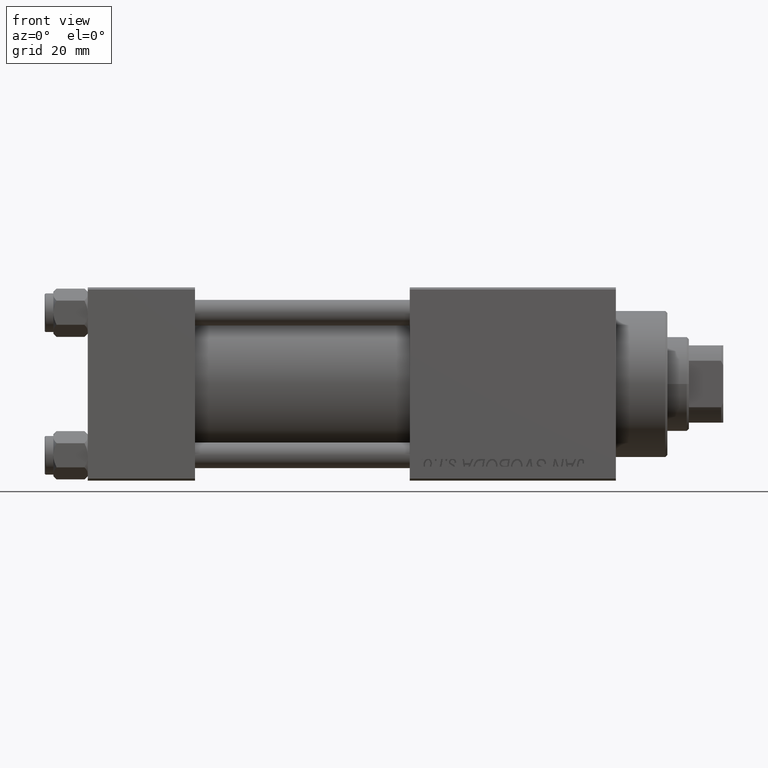
[diagram: clean part render]
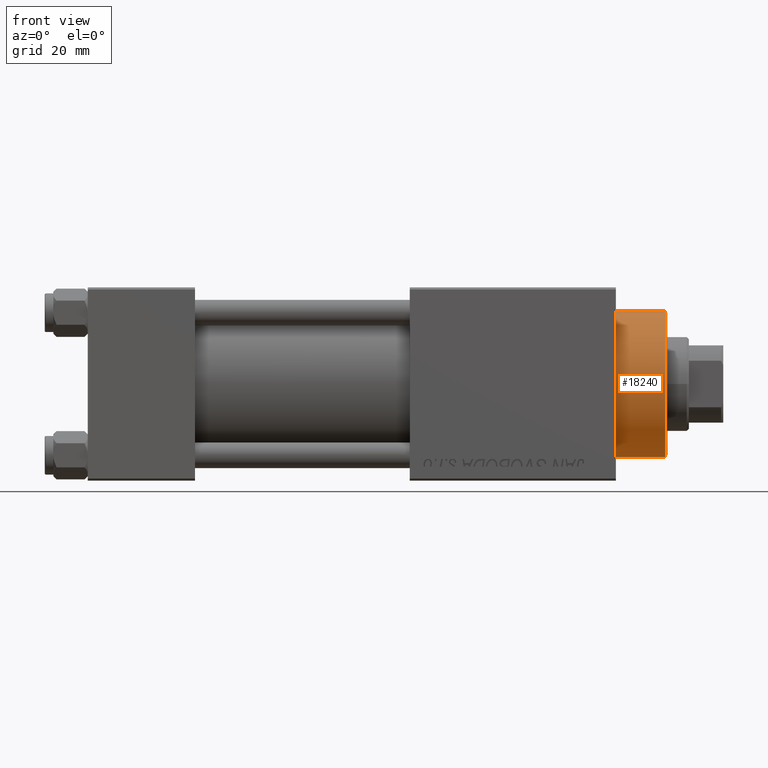
[diagram: same view with one face highlighted and labeled with its STEP entity id]
A machine part, front view. The second image highlights one B-rep face of the part: STEP entity #18240.
In plain terms, the highlighted cylindrical surface (partial cylindrical patch) has radius 17 mm, axis along (-1, -0, -0).
Its self-contained STEP definition (entity closure, byte-faithful):
#5563 = EDGE_CURVE ( 'NONE', #50344, #8810, #31884, .T. ) ;
#5989 = ORIENTED_EDGE ( 'NONE', *, *, #24898, .T. ) ;
#7106 = VERTEX_POINT ( 'NONE', #30525 ) ;
#8810 = VERTEX_POINT ( 'NONE', #24406 ) ;
#9127 = CARTESIAN_POINT ( 'NONE',  ( 0.000000000000000000, 0.000000000000000000, 40.19999999999999574 ) ) ;
#9346 = VECTOR ( 'NONE', #46941, 1000.000000000000000 ) ;
#9614 = DIRECTION ( 'NONE',  ( 1.000000000000000000, 0.000000000000000000, 0.000000000000000000 ) ) ;
#10250 = CARTESIAN_POINT ( 'NONE',  ( 0.000000000000000000, 0.000000000000000000, 28.69999999999999929 ) ) ;
#10684 = DIRECTION ( 'NONE',  ( -0.000000000000000000, -0.000000000000000000, -1.000000000000000000 ) ) ;
#10951 = CIRCLE ( 'NONE', #48376, 17.00000000000000000 ) ;
#12998 = AXIS2_PLACEMENT_3D ( 'NONE', #45573, #10684, #26226 ) ;
#13121 = VERTEX_POINT ( 'NONE', #18186 ) ;
#13700 = LINE ( 'NONE', #44029, #19009 ) ;
#15672 = CARTESIAN_POINT ( 'NONE',  ( -17.00000000000000000, 0.000000000000000000, 40.19999999999999574 ) ) ;
#17280 = DIRECTION ( 'NONE',  ( -0.000000000000000000, -0.000000000000000000, -1.000000000000000000 ) ) ;
#18186 = CARTESIAN_POINT ( 'NONE',  ( 17.00000000000000000, 2.081899558550500280E-15, 40.19999999999999574 ) ) ;
#18240 = ADVANCED_FACE ( 'NONE', ( #29791 ), #22159, .T. ) ;
#19009 = VECTOR ( 'NONE', #17280, 1000.000000000000000 ) ;
#22159 = CYLINDRICAL_SURFACE ( 'NONE', #12998, 17.00000000000000000 ) ;
#24406 = CARTESIAN_POINT ( 'NONE',  ( -17.00000000000000000, 0.000000000000000000, 28.69999999999999929 ) ) ;
#24898 = EDGE_CURVE ( 'NONE', #8810, #7106, #32573, .T. ) ;
#26226 = DIRECTION ( 'NONE',  ( -1.000000000000000000, 0.000000000000000000, 0.000000000000000000 ) ) ;
#27344 = CARTESIAN_POINT ( 'NONE',  ( -17.00000000000000000, 0.000000000000000000, 40.70000000000000284 ) ) ;
#28558 = AXIS2_PLACEMENT_3D ( 'NONE', #10250, #30617, #38004 ) ;
#29791 = FACE_OUTER_BOUND ( 'NONE', #31392, .T. ) ;
#30525 = CARTESIAN_POINT ( 'NONE',  ( 17.00000000000000000, 2.081899558550500280E-15, 28.69999999999999929 ) ) ;
#30617 = DIRECTION ( 'NONE',  ( 0.000000000000000000, 0.000000000000000000, 1.000000000000000000 ) ) ;
#31347 = ORIENTED_EDGE ( 'NONE', *, *, #5563, .T. ) ;
#31392 = EDGE_LOOP ( 'NONE', ( #32292, #33168, #31347, #5989 ) ) ;
#31884 = LINE ( 'NONE', #27344, #9346 ) ;
#32292 = ORIENTED_EDGE ( 'NONE', *, *, #34621, .F. ) ;
#32573 = CIRCLE ( 'NONE', #28558, 17.00000000000000000 ) ;
#33168 = ORIENTED_EDGE ( 'NONE', *, *, #37637, .T. ) ;
#34621 = EDGE_CURVE ( 'NONE', #13121, #7106, #13700, .T. ) ;
#37637 = EDGE_CURVE ( 'NONE', #13121, #50344, #10951, .T. ) ;
#38004 = DIRECTION ( 'NONE',  ( 1.000000000000000000, 0.000000000000000000, 0.000000000000000000 ) ) ;
#44029 = CARTESIAN_POINT ( 'NONE',  ( 17.00000000000000000, 2.081899558550500280E-15, 40.70000000000000284 ) ) ;
#45573 = CARTESIAN_POINT ( 'NONE',  ( 0.000000000000000000, 0.000000000000000000, 40.70000000000000284 ) ) ;
#46941 = DIRECTION ( 'NONE',  ( -0.000000000000000000, -0.000000000000000000, -1.000000000000000000 ) ) ;
#48376 = AXIS2_PLACEMENT_3D ( 'NONE', #9127, #48578, #9614 ) ;
#48578 = DIRECTION ( 'NONE',  ( 0.000000000000000000, 0.000000000000000000, -1.000000000000000000 ) ) ;
#50344 = VERTEX_POINT ( 'NONE', #15672 ) ;